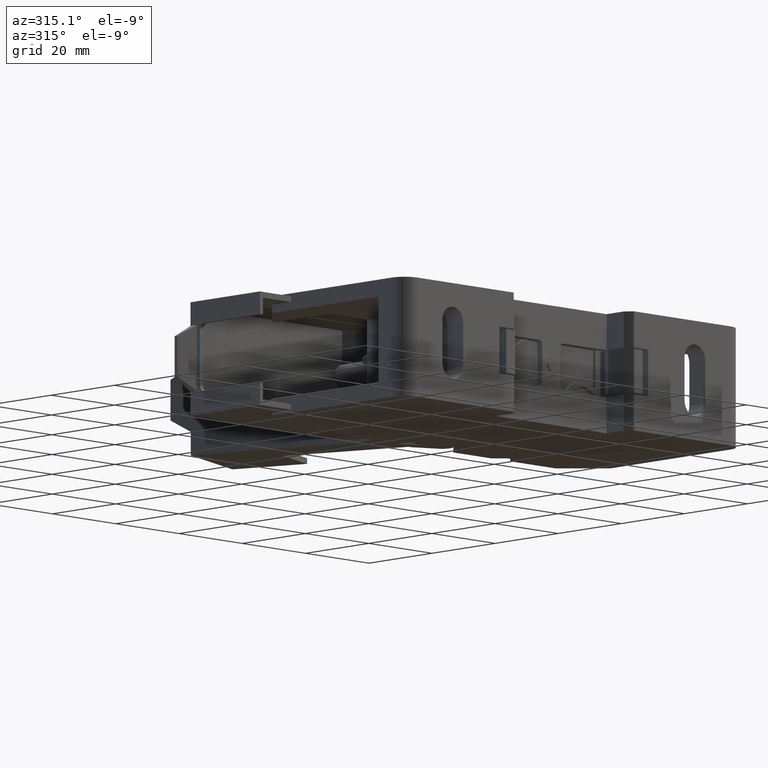
[diagram: clean part render]
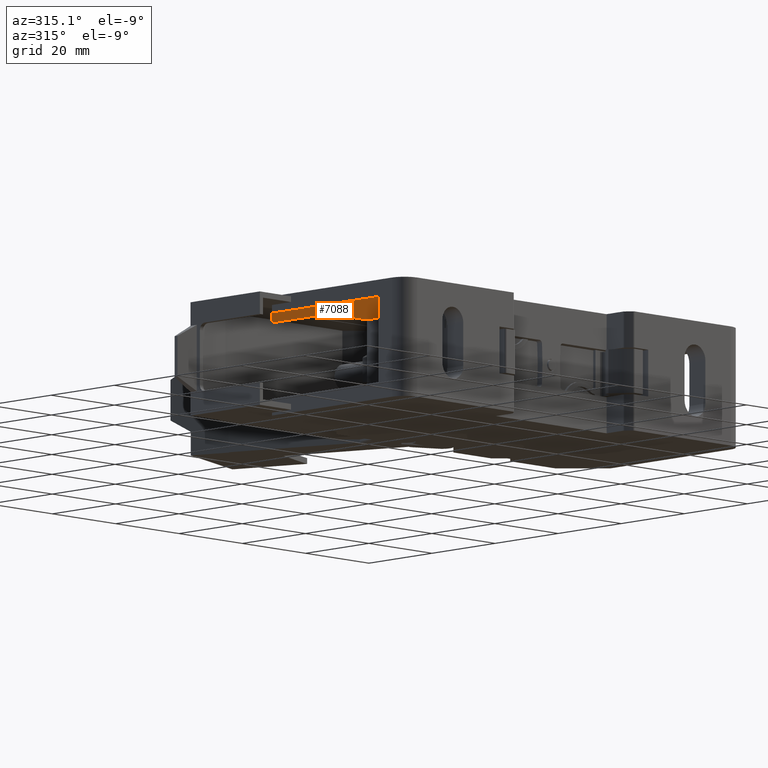
[diagram: same view with one face highlighted and labeled with its STEP entity id]
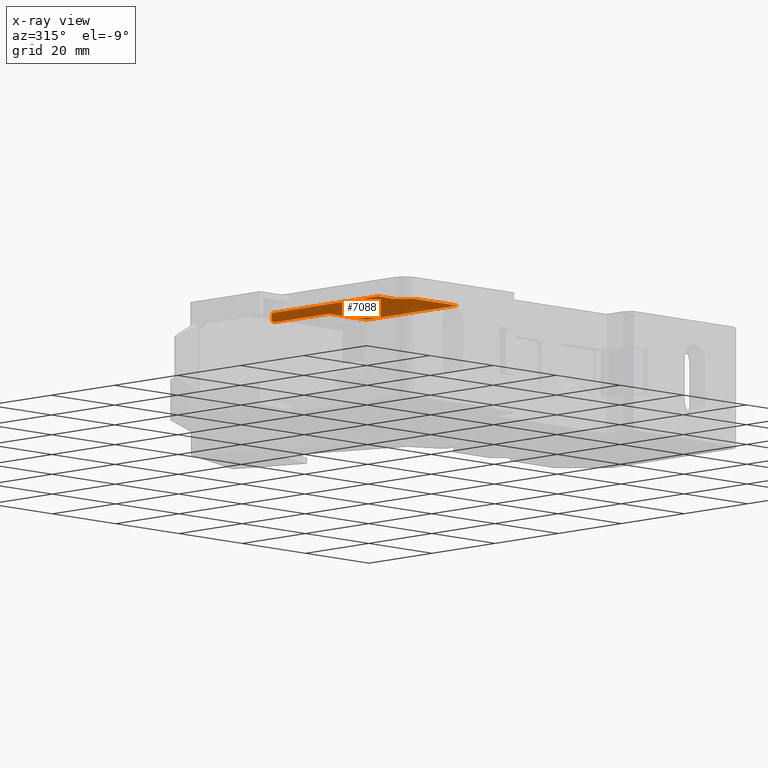
[diagram: x-ray of the same camera — body ghosted, the highlighted face saturated]
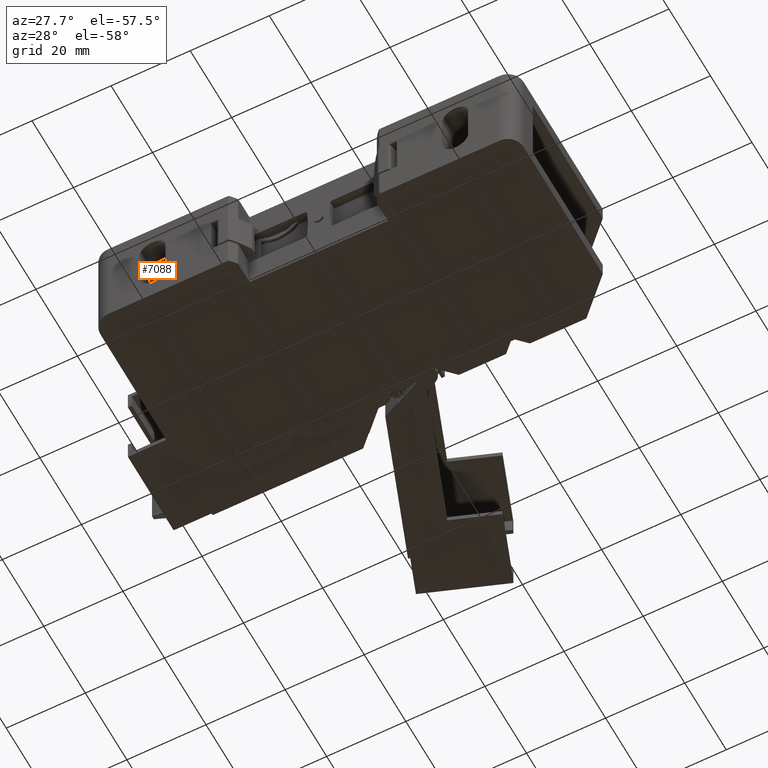
[diagram: same view with one face highlighted and labeled with its STEP entity id]
A machine part, auxiliary view. The second image highlights one B-rep face of the part: STEP entity #7088.
The next image is the same camera in x-ray: the body ghosted, the highlighted face saturated — about 13% of this face is hidden behind the body in this view.
A second angle (auxiliary view) of the same face is appended — the face is thin or edge-on in the first view.
In plain terms, the highlighted planar face has unit normal (0, 0, 1).
Its self-contained STEP definition (entity closure, byte-faithful):
#1233 = FACE_OUTER_BOUND ( 'NONE', #11190, .T. ) ;
#1252 = CARTESIAN_POINT ( 'NONE',  ( -28.75000000000915900, 8.500000000000000000, 23.19999999999999900 ) ) ;
#1267 = PLANE ( 'NONE',  #2907 ) ;
#1269 = DIRECTION ( 'NONE',  ( 1.000000000000000000, 0.0000000000000000000, -0.0000000000000000000 ) ) ;
#1271 = DIRECTION ( 'NONE',  ( 0.0000000000000000000, 0.0000000000000000000, 1.000000000000000000 ) ) ;
#2586 = EDGE_CURVE ( 'NONE', #13200, #13239, #4059, .T. ) ;
#2590 = EDGE_CURVE ( 'NONE', #13252, #13212, #4046, .T. ) ;
#2594 = EDGE_CURVE ( 'NONE', #13212, #13139, #4097, .T. ) ;
#2611 = EDGE_CURVE ( 'NONE', #13249, #13200, #4148, .T. ) ;
#2625 = EDGE_CURVE ( 'NONE', #13139, #13249, #4166, .T. ) ;
#2629 = EDGE_CURVE ( 'NONE', #13237, #13252, #4132, .T. ) ;
#2907 = AXIS2_PLACEMENT_3D ( 'NONE', #1252, #1271, #1269 ) ;
#4022 = DIRECTION ( 'NONE',  ( 1.000000000000000000, 0.0000000000000000000, -0.0000000000000000000 ) ) ;
#4040 = CARTESIAN_POINT ( 'NONE',  ( -28.75000000000915900, 25.49999999999994300, 23.19999999999999900 ) ) ;
#4046 = LINE ( 'NONE', #4054, #12020 ) ;
#4052 = DIRECTION ( 'NONE',  ( -1.000000000000000000, -0.0000000000000000000, 0.0000000000000000000 ) ) ;
#4054 = CARTESIAN_POINT ( 'NONE',  ( -28.75000000000915900, -20.20000000000001700, 23.19999999999999900 ) ) ;
#4059 = LINE ( 'NONE', #4040, #12040 ) ;
#4065 = DIRECTION ( 'NONE',  ( -0.0000000000000000000, 1.000000000000000000, 0.0000000000000000000 ) ) ;
#4097 = LINE ( 'NONE', #4098, #12043 ) ;
#4098 = CARTESIAN_POINT ( 'NONE',  ( -31.75000000000914500, 8.500000000000000000, 23.19999999999999900 ) ) ;
#4132 = LINE ( 'NONE', #4143, #14783 ) ;
#4143 = CARTESIAN_POINT ( 'NONE',  ( -48.24000000000914700, -16.96122401770840000, 23.19999999999999900 ) ) ;
#4147 = DIRECTION ( 'NONE',  ( -0.0000000000000000000, 1.000000000000000000, 0.0000000000000000000 ) ) ;
#4148 = LINE ( 'NONE', #4149, #12003 ) ;
#4149 = CARTESIAN_POINT ( 'NONE',  ( -43.75000000000001400, 8.500000000000000000, 23.19999999999999900 ) ) ;
#4166 = LINE ( 'NONE', #4184, #11997 ) ;
#4184 = CARTESIAN_POINT ( 'NONE',  ( -28.75000000000915900, 8.500000000000000000, 23.19999999999999900 ) ) ;
#4187 = DIRECTION ( 'NONE',  ( -1.000000000000000000, -0.0000000000000000000, 0.0000000000000000000 ) ) ;
#4197 = DIRECTION ( 'NONE',  ( 0.7071067811865468000, -0.7071067811865483500, 0.0000000000000000000 ) ) ;
#7088 = ADVANCED_FACE ( 'NONE', ( #1233 ), #1267, .F. ) ;
#8251 = CARTESIAN_POINT ( 'NONE',  ( -53.49999999999999300, -16.96122401770838900, 23.19999999999999900 ) ) ;
#8287 = CARTESIAN_POINT ( 'NONE',  ( -53.49999999999999300, 16.74999999999996800, 23.19999999999999900 ) ) ;
#9546 = LINE ( 'NONE', #9565, #14653 ) ;
#9565 = CARTESIAN_POINT ( 'NONE',  ( -53.74999999999996400, 16.49999999999996400, 23.19999999999999900 ) ) ;
#9631 = DIRECTION ( 'NONE',  ( 0.7071067811865480200, 0.7071067811865470200, 0.0000000000000000000 ) ) ;
#9657 = CARTESIAN_POINT ( 'NONE',  ( -53.50000000000000000, -25.50000000000000400, 23.19999999999999900 ) ) ;
#9705 = DIRECTION ( 'NONE',  ( 0.0000000000000000000, 1.000000000000000000, 0.0000000000000000000 ) ) ;
#9713 = LINE ( 'NONE', #9657, #14678 ) ;
#9752 = DIRECTION ( 'NONE',  ( 1.000000000000000000, 0.0000000000000000000, -0.0000000000000000000 ) ) ;
#9756 = LINE ( 'NONE', #9820, #14671 ) ;
#9820 = CARTESIAN_POINT ( 'NONE',  ( -28.75000000000915900, -16.96122401770838900, 23.19999999999999900 ) ) ;
#10591 = ORIENTED_EDGE ( 'NONE', *, *, #2586, .F. ) ;
#10596 = ORIENTED_EDGE ( 'NONE', *, *, #2590, .F. ) ;
#10602 = ORIENTED_EDGE ( 'NONE', *, *, #2611, .F. ) ;
#10616 = ORIENTED_EDGE ( 'NONE', *, *, #15063, .F. ) ;
#10624 = ORIENTED_EDGE ( 'NONE', *, *, #2594, .F. ) ;
#10625 = ORIENTED_EDGE ( 'NONE', *, *, #15049, .T. ) ;
#10638 = ORIENTED_EDGE ( 'NONE', *, *, #15035, .T. ) ;
#10642 = ORIENTED_EDGE ( 'NONE', *, *, #2629, .F. ) ;
#10727 = ORIENTED_EDGE ( 'NONE', *, *, #2625, .F. ) ;
#11190 = EDGE_LOOP ( 'NONE', ( #10624, #10596, #10642, #10616, #10625, #10638, #10591, #10602, #10727 ) ) ;
#11997 = VECTOR ( 'NONE', #4187, 1000.000000000000000 ) ;
#12003 = VECTOR ( 'NONE', #4147, 1000.000000000000000 ) ;
#12020 = VECTOR ( 'NONE', #4022, 1000.000000000000000 ) ;
#12040 = VECTOR ( 'NONE', #4052, 1000.000000000000000 ) ;
#12043 = VECTOR ( 'NONE', #4065, 1000.000000000000000 ) ;
#13139 = VERTEX_POINT ( 'NONE', #14355 ) ;
#13200 = VERTEX_POINT ( 'NONE', #14388 ) ;
#13212 = VERTEX_POINT ( 'NONE', #14452 ) ;
#13237 = VERTEX_POINT ( 'NONE', #14461 ) ;
#13239 = VERTEX_POINT ( 'NONE', #14462 ) ;
#13249 = VERTEX_POINT ( 'NONE', #14424 ) ;
#13252 = VERTEX_POINT ( 'NONE', #14475 ) ;
#13322 = VERTEX_POINT ( 'NONE', #8287 ) ;
#13334 = VERTEX_POINT ( 'NONE', #8251 ) ;
#14355 = CARTESIAN_POINT ( 'NONE',  ( -31.75000000000914500, 8.500000000000000000, 23.19999999999999900 ) ) ;
#14388 = CARTESIAN_POINT ( 'NONE',  ( -43.75000000000002800, 25.49999999999993600, 23.19999999999999900 ) ) ;
#14424 = CARTESIAN_POINT ( 'NONE',  ( -43.75000000000001400, 8.500000000000001800, 23.19999999999999900 ) ) ;
#14452 = CARTESIAN_POINT ( 'NONE',  ( -31.75000000000914500, -20.19999999999998900, 23.19999999999999900 ) ) ;
#14461 = CARTESIAN_POINT ( 'NONE',  ( -48.24000000000915400, -16.96122401770840000, 23.19999999999999900 ) ) ;
#14462 = CARTESIAN_POINT ( 'NONE',  ( -44.74999999999997200, 25.49999999999994300, 23.19999999999999900 ) ) ;
#14475 = CARTESIAN_POINT ( 'NONE',  ( -45.00122401771754000, -20.20000000000001700, 23.19999999999999900 ) ) ;
#14653 = VECTOR ( 'NONE', #9631, 1000.000000000000000 ) ;
#14671 = VECTOR ( 'NONE', #9752, 1000.000000000000000 ) ;
#14678 = VECTOR ( 'NONE', #9705, 1000.000000000000000 ) ;
#14783 = VECTOR ( 'NONE', #4197, 1000.000000000000000 ) ;
#15035 = EDGE_CURVE ( 'NONE', #13322, #13239, #9546, .T. ) ;
#15049 = EDGE_CURVE ( 'NONE', #13334, #13322, #9713, .T. ) ;
#15063 = EDGE_CURVE ( 'NONE', #13334, #13237, #9756, .T. ) ;